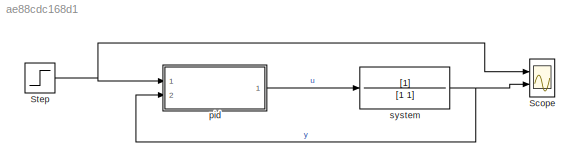
MODEL slx_ae88cdc168d1
KIND model
CONFIG AbsTol = auto
CONFIG EnableMultiTasking = off
CONFIG FixedStep = auto
CONFIG MaxStep = auto
CONFIG MinStep = auto
CONFIG RelTol = 1e-3
CONFIG SampleTimeConstraint = Unconstrained
CONFIG SolverName = VariableStepAuto
CONFIG StartTime = 0.0
CONFIG StopTime = 20
BLOCK [Scope] Scope
  Floating = off
  NumInputPorts = 2
  Ports = [2]
  ScopeSpecificationString = Simulink.scopes.TimeScopeBlockCfg('CurrentConfiguration', extmgr.ConfigurationSet(extmgr.Configuration('Core','General UI',true,'FigureColor',[1 1 1]),extmgr.Configuration('Core','Source UI',true),extmgr.Configuration('Sources','WiredSimulink',true),extmgr.Configuration('Visuals','Time Domain',true,'SerializedDisplays',{struct('MinYLimReal','-0.13229','MaxYLimReal','1.19061','YLabelReal','','MinYL...<+1480ch>
BLOCK [Step] Step
  SampleTime = 0
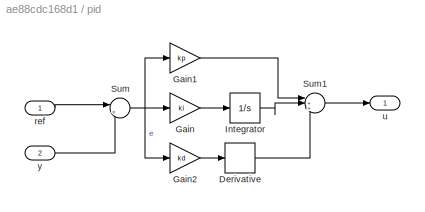
BLOCK [SubSystem] pid
  Ports = [2, 1]
  RequestExecContextInheritance = off
BLOCK [Derivative] pid/Derivative
BLOCK [Gain] pid/Gain
  Gain = ki
BLOCK [Gain] pid/Gain1
  Gain = kp
BLOCK [Gain] pid/Gain2
  Gain = kd
BLOCK [Integrator] pid/Integrator
  Ports = [1, 1]
BLOCK [Sum] pid/Sum
  Inputs = |+-
  Ports = [2, 1]
BLOCK [Sum] pid/Sum1
  Inputs = |+++
  Ports = [3, 1]
BLOCK [Inport] pid/ref
BLOCK [Outport] pid/u
BLOCK [Inport] pid/y
  Port = 2
BLOCK [TransferFcn] system
  Denominator = [1 1]
NET Step:1 -> Scope:1, pid:1
LINE pid/Derivative:1 -> pid/Sum1:3
LINE pid/Gain1:1 -> pid/Sum1:1
LINE pid/Gain2:1 -> pid/Derivative:1
LINE pid/Gain:1 -> pid/Integrator:1
LINE pid/Integrator:1 -> pid/Sum1:2
LINE pid/Sum1:1 -> pid/u:1
NET pid/Sum:1 -> pid/Gain1:1, pid/Gain2:1, pid/Gain:1
LINE pid/ref:1 -> pid/Sum:1
LINE pid/y:1 -> pid/Sum:2
LINE pid:1 -> system:1
NET system:1 -> Scope:2, pid:2
note: NET lines group one-source signal fan-out (src -> all destinations, sorted); 1:1 wires keep LINE
